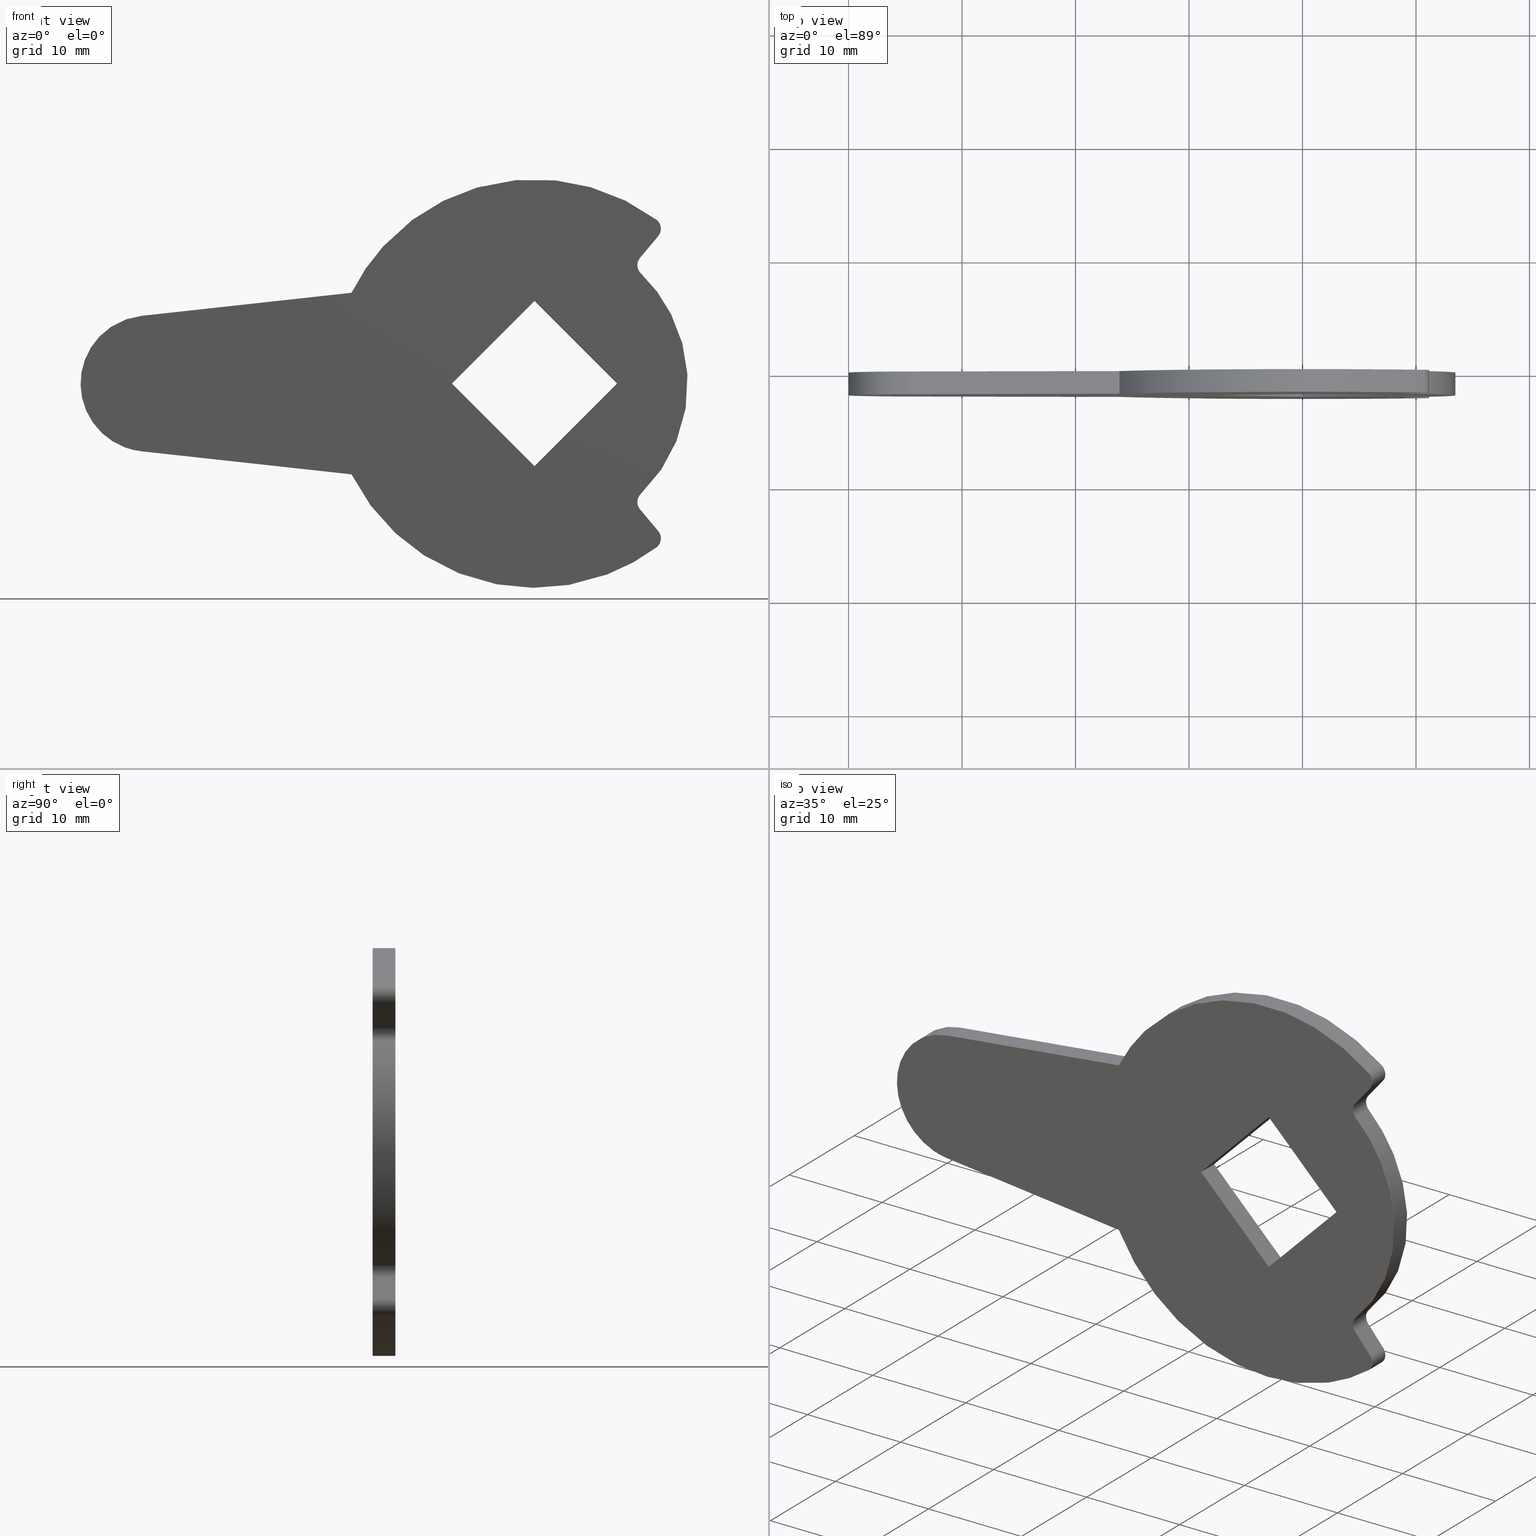
[diagram: canonical four-view strip — front | top / right | iso, engineering-drawing reading convention]
A machine part, canonical four-view strip (front | top / right | iso — engineering-drawing reading convention). The complete STEP part file that produces these views, byte-faithful:
ISO-10303-21;
HEADER;
/****************************************************************
 * Generated by software with PDE/Lib inside                    *
 * PDElib Version 4.4.1-0003, patched  Thursday August 19 11:58 *
 * International Technegroup Inc. (www.iti-oh.com)              *
 ****************************************************************/
FILE_DESCRIPTION((''),'2;1');
FILE_NAME('','2005-10-12T14:39:04',(''),(''),'','CADfix','');
FILE_SCHEMA(('AUTOMOTIVE_DESIGN'));
ENDSEC;
DATA;
#5=APPLICATION_CONTEXT('automotive design');
#6=APPLICATION_PROTOCOL_DEFINITION('Draft International Standard','automotive_design',1998,#5);
#7=PRODUCT_CONTEXT('None',#5,'mechanical');
#8=PRODUCT('cam','','None',(#7));
#9=PRODUCT_RELATED_PRODUCT_CATEGORY('part','description',(#8));
#10=PRODUCT_DEFINITION_FORMATION('None','None',#8);
#11=PRODUCT_DEFINITION_CONTEXT('part definition',#5,'design');
#12=PRODUCT_DEFINITION('None','None',#10,#11);
#18=(NAMED_UNIT(*)PLANE_ANGLE_UNIT()SI_UNIT($,.RADIAN.));
#19=DIMENSIONAL_EXPONENTS(0.0,0.0,0.0,0.0,0.0,0.0,0.0);
#20=PLANE_ANGLE_MEASURE_WITH_UNIT(PLANE_ANGLE_MEASURE(0.017453292500000),#18);
#24=(CONVERSION_BASED_UNIT('DEGREE',#20)NAMED_UNIT(#19)PLANE_ANGLE_UNIT());
#28=(NAMED_UNIT(*)SI_UNIT($,.STERADIAN.)SOLID_ANGLE_UNIT());
#32=(LENGTH_UNIT()NAMED_UNIT(*)SI_UNIT(.MILLI.,.METRE.));
#34=UNCERTAINTY_MEASURE_WITH_UNIT(LENGTH_MEASURE(0.001000000000000),#32,'DISTANCE_ACCURACY_VALUE','');
#36=(GEOMETRIC_REPRESENTATION_CONTEXT(3)GLOBAL_UNCERTAINTY_ASSIGNED_CONTEXT((#34))GLOBAL_UNIT_ASSIGNED_CONTEXT((#24,#28,#32))REPRESENTATION_CONTEXT('None','None'));
#37=AXIS2_PLACEMENT_3D('',#38,#39,#40);
#38=CARTESIAN_POINT('',(0.0,0.0,0.0));
#39=DIRECTION('',(0.0,0.0,1.0));
#40=DIRECTION('',(1.0,0.0,0.0));
#41=ADVANCED_BREP_SHAPE_REPRESENTATION('',(#37,#773),#36);
#42=PRODUCT_DEFINITION_SHAPE('','',#12);
#43=SHAPE_DEFINITION_REPRESENTATION(#42,#41);
#44=CARTESIAN_POINT('',(-42.672072522692837,0.0,19.798160958607792));
#45=CARTESIAN_POINT('',(16.172307132952142,0.0,19.798160958607792));
#46=CARTESIAN_POINT('',(-42.672072522692837,0.0,-19.798180533607209));
#47=CARTESIAN_POINT('',(16.172307132952142,0.0,-19.798180533607209));
#48=B_SPLINE_SURFACE_WITH_KNOTS('',1,1,((#44,#46),(#45,#47)),.UNSPECIFIED.,.F.,.F.,.U.,(2,2),(2,2),(0.0,58.844379655644993),(0.0,39.596341492214997),.UNSPECIFIED.);
#49=CARTESIAN_POINT('',(-16.124516390019249,0.0,-7.999998199249859));
#50=VERTEX_POINT('',#49);
#51=CARTESIAN_POINT('',(-34.676984152787249,0.0,-5.961662655938681));
#52=VERTEX_POINT('',#51);
#53=CARTESIAN_POINT('',(-16.124516390019249,0.0,-7.999998199249859));
#54=CARTESIAN_POINT('',(-34.676984152787249,0.0,-5.961662655938681));
#55=QUASI_UNIFORM_CURVE('',1,(#53,#54),.UNSPECIFIED.,.F.,.U.);
#56=EDGE_CURVE('',#50,#52,#55,.T.);
#57=ORIENTED_EDGE('',*,*,#56,.T.);
#58=CARTESIAN_POINT('',(-34.633145301686049,0.0,5.966479173585730));
#59=VERTEX_POINT('',#58);
#60=CARTESIAN_POINT('',(-34.633145301686049,0.0,5.966479173585726));
#61=CARTESIAN_POINT('',(-39.979998210725512,0.0,5.398907567245670));
#62=CARTESIAN_POINT('',(-39.999759478119252,0.0,0.022051324836150));
#63=CARTESIAN_POINT('',(-40.019520745512963,0.0,-5.354804917573370));
#64=CARTESIAN_POINT('',(-34.676984152787249,0.0,-5.961662655938678));
#72=(BOUNDED_CURVE()B_SPLINE_CURVE(2,(#60,#61,#62,#63,#64),.UNSPECIFIED.,.F.,.U.)B_SPLINE_CURVE_WITH_KNOTS((3,2,3),(0.0,0.500000000000000,1.0),.UNSPECIFIED.)CURVE()GEOMETRIC_REPRESENTATION_ITEM()RATIONAL_B_SPLINE_CURVE((1.0,0.744718579548289,1.0,0.744718579548289,1.0))REPRESENTATION_ITEM(''));
#73=EDGE_CURVE('',#59,#52,#72,.T.);
#74=ORIENTED_EDGE('',*,*,#73,.F.);
#75=CARTESIAN_POINT('',(-16.124516390019298,0.0,7.999998199249760));
#76=VERTEX_POINT('',#75);
#77=CARTESIAN_POINT('',(-34.633145301686049,0.0,5.966479173585730));
#78=CARTESIAN_POINT('',(-16.124516390019298,0.0,7.999998199249760));
#79=QUASI_UNIFORM_CURVE('',1,(#77,#78),.UNSPECIFIED.,.F.,.U.);
#80=EDGE_CURVE('',#59,#76,#79,.T.);
#81=ORIENTED_EDGE('',*,*,#80,.T.);
#82=CARTESIAN_POINT('',(10.739072857427660,0.0,14.445526761286960));
#83=VERTEX_POINT('',#82);
#84=CARTESIAN_POINT('',(10.739072857427670,0.0,14.445526761286979));
#85=CARTESIAN_POINT('',(3.984586888391954,0.0,19.466919151968000));
#86=CARTESIAN_POINT('',(-4.199630048120304,0.0,17.503235016676509));
#87=CARTESIAN_POINT('',(-12.383846984632562,0.0,15.539550881385031));
#88=CARTESIAN_POINT('',(-16.124516390019298,0.0,7.999998199249757));
#96=(BOUNDED_CURVE()B_SPLINE_CURVE(2,(#84,#85,#86,#87,#88),.UNSPECIFIED.,.F.,.U.)B_SPLINE_CURVE_WITH_KNOTS((3,2,3),(0.0,0.500000000000000,1.0),.UNSPECIFIED.)CURVE()GEOMETRIC_REPRESENTATION_ITEM()RATIONAL_B_SPLINE_CURVE((1.0,0.905864952288434,1.0,0.905864952288434,1.0))REPRESENTATION_ITEM(''));
#97=EDGE_CURVE('',#83,#76,#96,.T.);
#98=ORIENTED_EDGE('',*,*,#97,.F.);
#99=CARTESIAN_POINT('',(10.903888410520860,0.0,12.994704011793500));
#100=VERTEX_POINT('',#99);
#101=CARTESIAN_POINT('',(10.903888410520850,0.0,12.994704011793511));
#102=CARTESIAN_POINT('',(11.185033449866765,0.0,13.324930315184833));
#103=CARTESIAN_POINT('',(11.136079863434230,0.0,13.755854311935661));
#104=CARTESIAN_POINT('',(11.087126277001692,0.0,14.186778308686488));
#105=CARTESIAN_POINT('',(10.739072857427660,0.0,14.445526761286960));
#113=(BOUNDED_CURVE()B_SPLINE_CURVE(2,(#101,#102,#103,#104,#105),.UNSPECIFIED.,.F.,.U.)B_SPLINE_CURVE_WITH_KNOTS((3,2,3),(0.0,0.500000000000000,1.0),.UNSPECIFIED.)CURVE()GEOMETRIC_REPRESENTATION_ITEM()RATIONAL_B_SPLINE_CURVE((1.0,0.917438250666661,1.0,0.917438250666661,1.0))REPRESENTATION_ITEM(''));
#114=EDGE_CURVE('',#100,#83,#113,.T.);
#115=ORIENTED_EDGE('',*,*,#114,.F.);
#116=CARTESIAN_POINT('',(9.302911589467289,0.0,11.086695988192600));
#117=VERTEX_POINT('',#116);
#118=CARTESIAN_POINT('',(10.903888410520860,0.0,12.994704011793500));
#119=CARTESIAN_POINT('',(9.302911589467289,0.0,11.086695988192600));
#120=QUASI_UNIFORM_CURVE('',1,(#118,#119),.UNSPECIFIED.,.F.,.U.);
#121=EDGE_CURVE('',#100,#117,#120,.T.);
#122=ORIENTED_EDGE('',*,*,#121,.T.);
#123=CARTESIAN_POINT('',(9.370201414441402,0.0,9.718512161382490));
#124=VERTEX_POINT('',#123);
#125=CARTESIAN_POINT('',(9.302911589467280,0.0,11.086695988192609));
#126=CARTESIAN_POINT('',(8.693486324251857,0.0,10.370976687549268));
#127=CARTESIAN_POINT('',(9.370201414441397,0.0,9.718512161382483));
#135=(BOUNDED_CURVE()B_SPLINE_CURVE(2,(#125,#126,#127),.UNSPECIFIED.,.F.,.U.)CURVE()GEOMETRIC_REPRESENTATION_ITEM()QUASI_UNIFORM_CURVE()RATIONAL_B_SPLINE_CURVE((1.0,0.728615029615800,1.0))REPRESENTATION_ITEM(''));
#136=EDGE_CURVE('',#117,#124,#135,.T.);
#137=ORIENTED_EDGE('',*,*,#136,.T.);
#138=CARTESIAN_POINT('',(9.370232998812860,0.0,-9.718481708830780));
#139=VERTEX_POINT('',#138);
#140=CARTESIAN_POINT('',(9.370232998812858,0.0,-9.718481708830781));
#141=CARTESIAN_POINT('',(13.500002456544811,0.0,-5.736679563118574));
#142=CARTESIAN_POINT('',(13.499993134626131,0.0,0.000021937005616));
#143=CARTESIAN_POINT('',(13.499983812707452,0.0,5.736723437129803));
#144=CARTESIAN_POINT('',(9.370201414441402,0.0,9.718512161382490));
#152=(BOUNDED_CURVE()B_SPLINE_CURVE(2,(#140,#141,#142,#143,#144),.UNSPECIFIED.,.F.,.U.)B_SPLINE_CURVE_WITH_KNOTS((3,2,3),(0.0,0.500000000000000,1.0),.UNSPECIFIED.)CURVE()GEOMETRIC_REPRESENTATION_ITEM()RATIONAL_B_SPLINE_CURVE((1.0,0.920350869292396,1.0,0.920350869292396,1.0))REPRESENTATION_ITEM(''));
#153=EDGE_CURVE('',#139,#124,#152,.T.);
#154=ORIENTED_EDGE('',*,*,#153,.F.);
#155=CARTESIAN_POINT('',(9.302911589466469,0.0,-11.086695988191639));
#156=VERTEX_POINT('',#155);
#157=CARTESIAN_POINT('',(9.370232998812860,0.0,-9.718481708830780));
#158=CARTESIAN_POINT('',(8.693520258576225,0.0,-10.370948212998021));
#159=CARTESIAN_POINT('',(9.302911589466465,0.0,-11.086695988191639));
#167=(BOUNDED_CURVE()B_SPLINE_CURVE(2,(#157,#158,#159),.UNSPECIFIED.,.F.,.U.)CURVE()GEOMETRIC_REPRESENTATION_ITEM()QUASI_UNIFORM_CURVE()RATIONAL_B_SPLINE_CURVE((1.0,0.728632280253743,1.0))REPRESENTATION_ITEM(''));
#168=EDGE_CURVE('',#139,#156,#167,.T.);
#169=ORIENTED_EDGE('',*,*,#168,.T.);
#170=CARTESIAN_POINT('',(10.903888410526561,0.0,-12.994704011800300));
#171=VERTEX_POINT('',#170);
#172=CARTESIAN_POINT('',(9.302911589466469,0.0,-11.086695988191639));
#173=CARTESIAN_POINT('',(10.903888410526561,0.0,-12.994704011800300));
#174=QUASI_UNIFORM_CURVE('',1,(#172,#173),.UNSPECIFIED.,.F.,.U.);
#175=EDGE_CURVE('',#156,#171,#174,.T.);
#176=ORIENTED_EDGE('',*,*,#175,.T.);
#177=CARTESIAN_POINT('',(10.739112776660720,0.0,-14.445497084531420));
#178=VERTEX_POINT('',#177);
#179=CARTESIAN_POINT('',(10.739112776660731,0.0,-14.445497084531430));
#180=CARTESIAN_POINT('',(11.087159702485563,0.0,-14.186750629943164));
#181=CARTESIAN_POINT('',(11.136101848852570,0.0,-13.755831778363071));
#182=CARTESIAN_POINT('',(11.185043995219578,0.0,-13.324912926782989));
#183=CARTESIAN_POINT('',(10.903888410526561,0.0,-12.994704011800300));
#191=(BOUNDED_CURVE()B_SPLINE_CURVE(2,(#179,#180,#181,#182,#183),.UNSPECIFIED.,.F.,.U.)B_SPLINE_CURVE_WITH_KNOTS((3,2,3),(0.0,0.500000000000000,1.0),.UNSPECIFIED.)CURVE()GEOMETRIC_REPRESENTATION_ITEM()RATIONAL_B_SPLINE_CURVE((1.0,0.917434344494731,1.0,0.917434344494731,1.0))REPRESENTATION_ITEM(''));
#192=EDGE_CURVE('',#178,#171,#191,.T.);
#193=ORIENTED_EDGE('',*,*,#192,.F.);
#194=CARTESIAN_POINT('',(-16.124516390019259,0.0,-7.999998199249873));
#195=CARTESIAN_POINT('',(-12.383854566696820,0.0,-15.539582422374794));
#196=CARTESIAN_POINT('',(-4.199610718877528,0.0,-17.503261055320699));
#197=CARTESIAN_POINT('',(3.984633128941766,0.0,-19.466939688266606));
#198=CARTESIAN_POINT('',(10.739112776660731,0.0,-14.445497084531450));
#206=(BOUNDED_CURVE()B_SPLINE_CURVE(2,(#194,#195,#196,#197,#198),.UNSPECIFIED.,.F.,.U.)B_SPLINE_CURVE_WITH_KNOTS((3,2,3),(0.0,0.500000000000000,1.0),.UNSPECIFIED.)CURVE()GEOMETRIC_REPRESENTATION_ITEM()RATIONAL_B_SPLINE_CURVE((1.0,0.905864136016763,1.0,0.905864136016763,1.0))REPRESENTATION_ITEM(''));
#207=EDGE_CURVE('',#50,#178,#206,.T.);
#208=ORIENTED_EDGE('',*,*,#207,.F.);
#209=EDGE_LOOP('',(#57,#74,#81,#98,#115,#122,#137,#154,#169,#176,#193,#208));
#210=FACE_OUTER_BOUND('',#209,.T.);
#211=CARTESIAN_POINT('',(0.000100000000003,0.0,-7.283200000000000));
#212=VERTEX_POINT('',#211);
#213=CARTESIAN_POINT('',(-7.283100000000000,0.0,0.0));
#214=VERTEX_POINT('',#213);
#215=CARTESIAN_POINT('',(0.000100000000003,0.0,-7.283200000000000));
#216=CARTESIAN_POINT('',(-7.283100000000000,0.0,0.0));
#217=QUASI_UNIFORM_CURVE('',1,(#215,#216),.UNSPECIFIED.,.F.,.U.);
#218=EDGE_CURVE('',#212,#214,#217,.T.);
#219=ORIENTED_EDGE('',*,*,#218,.F.);
#220=CARTESIAN_POINT('',(7.283299999999900,0.0,0.0));
#221=VERTEX_POINT('',#220);
#222=CARTESIAN_POINT('',(7.283299999999900,0.0,0.0));
#223=CARTESIAN_POINT('',(0.000100000000003,0.0,-7.283200000000000));
#224=QUASI_UNIFORM_CURVE('',1,(#222,#223),.UNSPECIFIED.,.F.,.U.);
#225=EDGE_CURVE('',#221,#212,#224,.T.);
#226=ORIENTED_EDGE('',*,*,#225,.F.);
#227=CARTESIAN_POINT('',(0.000100000000003,0.0,7.283200000000000));
#228=VERTEX_POINT('',#227);
#229=CARTESIAN_POINT('',(0.000100000000003,0.0,7.283200000000000));
#230=CARTESIAN_POINT('',(7.283299999999900,0.0,0.0));
#231=QUASI_UNIFORM_CURVE('',1,(#229,#230),.UNSPECIFIED.,.F.,.U.);
#232=EDGE_CURVE('',#228,#221,#231,.T.);
#233=ORIENTED_EDGE('',*,*,#232,.F.);
#234=CARTESIAN_POINT('',(-7.283100000000000,0.0,0.0));
#235=CARTESIAN_POINT('',(0.000100000000003,0.0,7.283200000000000));
#236=QUASI_UNIFORM_CURVE('',1,(#234,#235),.UNSPECIFIED.,.F.,.U.);
#237=EDGE_CURVE('',#214,#228,#236,.T.);
#238=ORIENTED_EDGE('',*,*,#237,.F.);
#239=EDGE_LOOP('',(#219,#226,#233,#238));
#240=FACE_BOUND('',#239,.T.);
#241=ADVANCED_FACE('',(#210,#240),#48,.T.);
#242=CARTESIAN_POINT('',(-42.672072522692837,-1.999999999999915,19.798160958607792));
#243=CARTESIAN_POINT('',(16.172307132952142,-1.999999999999915,19.798160958607792));
#244=CARTESIAN_POINT('',(-42.672072522692837,-1.999999999999915,-19.798180533607209));
#245=CARTESIAN_POINT('',(16.172307132952142,-1.999999999999915,-19.798180533607209));
#246=B_SPLINE_SURFACE_WITH_KNOTS('',1,1,((#242,#244),(#243,#245)),.UNSPECIFIED.,.F.,.F.,.U.,(2,2),(2,2),(0.0,58.844379655644993),(0.0,39.596341492214997),.UNSPECIFIED.);
#247=CARTESIAN_POINT('',(-16.124516390019249,-1.999999999999890,-7.999998199249859));
#248=VERTEX_POINT('',#247);
#249=CARTESIAN_POINT('',(-34.676984152787249,-1.999999999999890,-5.961662655938681));
#250=VERTEX_POINT('',#249);
#251=CARTESIAN_POINT('',(-16.124516390019249,-1.999999999999890,-7.999998199249859));
#252=CARTESIAN_POINT('',(-34.676984152787249,-1.999999999999890,-5.961662655938681));
#253=QUASI_UNIFORM_CURVE('',1,(#251,#252),.UNSPECIFIED.,.F.,.U.);
#254=EDGE_CURVE('',#248,#250,#253,.T.);
#255=ORIENTED_EDGE('',*,*,#254,.F.);
#256=CARTESIAN_POINT('',(10.739112776660720,-1.999999999999890,-14.445497084531420));
#257=VERTEX_POINT('',#256);
#258=CARTESIAN_POINT('',(-16.124516390019259,-1.999999999999890,-7.999998199249873));
#259=CARTESIAN_POINT('',(-12.383854566696820,-1.999999999999890,-15.539582422374794));
#260=CARTESIAN_POINT('',(-4.199610718877528,-1.999999999999890,-17.503261055320699));
#261=CARTESIAN_POINT('',(3.984633128941766,-1.999999999999890,-19.466939688266606));
#262=CARTESIAN_POINT('',(10.739112776660731,-1.999999999999890,-14.445497084531450));
#270=(BOUNDED_CURVE()B_SPLINE_CURVE(2,(#258,#259,#260,#261,#262),.UNSPECIFIED.,.F.,.U.)B_SPLINE_CURVE_WITH_KNOTS((3,2,3),(0.0,0.500000000000000,1.0),.UNSPECIFIED.)CURVE()GEOMETRIC_REPRESENTATION_ITEM()RATIONAL_B_SPLINE_CURVE((1.0,0.905864136016763,1.0,0.905864136016763,1.0))REPRESENTATION_ITEM(''));
#271=EDGE_CURVE('',#248,#257,#270,.T.);
#272=ORIENTED_EDGE('',*,*,#271,.T.);
#273=CARTESIAN_POINT('',(10.903888410526561,-1.999999999999890,-12.994704011800300));
#274=VERTEX_POINT('',#273);
#275=CARTESIAN_POINT('',(10.739112776660731,-1.999999999999890,-14.445497084531430));
#276=CARTESIAN_POINT('',(11.087159702485563,-1.999999999999890,-14.186750629943164));
#277=CARTESIAN_POINT('',(11.136101848852570,-1.999999999999890,-13.755831778363071));
#278=CARTESIAN_POINT('',(11.185043995219578,-1.999999999999890,-13.324912926782989));
#279=CARTESIAN_POINT('',(10.903888410526561,-1.999999999999890,-12.994704011800300));
#287=(BOUNDED_CURVE()B_SPLINE_CURVE(2,(#275,#276,#277,#278,#279),.UNSPECIFIED.,.F.,.U.)B_SPLINE_CURVE_WITH_KNOTS((3,2,3),(0.0,0.500000000000000,1.0),.UNSPECIFIED.)CURVE()GEOMETRIC_REPRESENTATION_ITEM()RATIONAL_B_SPLINE_CURVE((1.0,0.917434344494731,1.0,0.917434344494731,1.0))REPRESENTATION_ITEM(''));
#288=EDGE_CURVE('',#257,#274,#287,.T.);
#289=ORIENTED_EDGE('',*,*,#288,.T.);
#290=CARTESIAN_POINT('',(9.302911589466469,-1.999999999999890,-11.086695988191639));
#291=VERTEX_POINT('',#290);
#292=CARTESIAN_POINT('',(9.302911589466469,-1.999999999999890,-11.086695988191639));
#293=CARTESIAN_POINT('',(10.903888410526561,-1.999999999999890,-12.994704011800300));
#294=QUASI_UNIFORM_CURVE('',1,(#292,#293),.UNSPECIFIED.,.F.,.U.);
#295=EDGE_CURVE('',#291,#274,#294,.T.);
#296=ORIENTED_EDGE('',*,*,#295,.F.);
#297=CARTESIAN_POINT('',(9.370232998812860,-1.999999999999890,-9.718481708830780));
#298=VERTEX_POINT('',#297);
#299=CARTESIAN_POINT('',(9.370232998812860,-1.999999999999890,-9.718481708830780));
#300=CARTESIAN_POINT('',(8.693520258576225,-1.999999999999891,-10.370948212998021));
#301=CARTESIAN_POINT('',(9.302911589466465,-1.999999999999890,-11.086695988191639));
#309=(BOUNDED_CURVE()B_SPLINE_CURVE(2,(#299,#300,#301),.UNSPECIFIED.,.F.,.U.)CURVE()GEOMETRIC_REPRESENTATION_ITEM()QUASI_UNIFORM_CURVE()RATIONAL_B_SPLINE_CURVE((1.0,0.728632280253743,1.0))REPRESENTATION_ITEM(''));
#310=EDGE_CURVE('',#298,#291,#309,.T.);
#311=ORIENTED_EDGE('',*,*,#310,.F.);
#312=CARTESIAN_POINT('',(9.370201414441402,-1.999999999999890,9.718512161382490));
#313=VERTEX_POINT('',#312);
#314=CARTESIAN_POINT('',(9.370232998812858,-1.999999999999890,-9.718481708830781));
#315=CARTESIAN_POINT('',(13.500002456544811,-1.999999999999890,-5.736679563118574));
#316=CARTESIAN_POINT('',(13.499993134626131,-1.999999999999890,0.000021937005616));
#317=CARTESIAN_POINT('',(13.499983812707452,-1.999999999999890,5.736723437129803));
#318=CARTESIAN_POINT('',(9.370201414441402,-1.999999999999890,9.718512161382490));
#326=(BOUNDED_CURVE()B_SPLINE_CURVE(2,(#314,#315,#316,#317,#318),.UNSPECIFIED.,.F.,.U.)B_SPLINE_CURVE_WITH_KNOTS((3,2,3),(0.0,0.500000000000000,1.0),.UNSPECIFIED.)CURVE()GEOMETRIC_REPRESENTATION_ITEM()RATIONAL_B_SPLINE_CURVE((1.0,0.920350869292396,1.0,0.920350869292396,1.0))REPRESENTATION_ITEM(''));
#327=EDGE_CURVE('',#298,#313,#326,.T.);
#328=ORIENTED_EDGE('',*,*,#327,.T.);
#329=CARTESIAN_POINT('',(9.302911589467289,-1.999999999999890,11.086695988192600));
#330=VERTEX_POINT('',#329);
#331=CARTESIAN_POINT('',(9.302911589467280,-1.999999999999890,11.086695988192609));
#332=CARTESIAN_POINT('',(8.693486324251857,-1.999999999999891,10.370976687549268));
#333=CARTESIAN_POINT('',(9.370201414441397,-1.999999999999890,9.718512161382483));
#341=(BOUNDED_CURVE()B_SPLINE_CURVE(2,(#331,#332,#333),.UNSPECIFIED.,.F.,.U.)CURVE()GEOMETRIC_REPRESENTATION_ITEM()QUASI_UNIFORM_CURVE()RATIONAL_B_SPLINE_CURVE((1.0,0.728615029615800,1.0))REPRESENTATION_ITEM(''));
#342=EDGE_CURVE('',#330,#313,#341,.T.);
#343=ORIENTED_EDGE('',*,*,#342,.F.);
#344=CARTESIAN_POINT('',(10.903888410520860,-1.999999999999890,12.994704011793500));
#345=VERTEX_POINT('',#344);
#346=CARTESIAN_POINT('',(10.903888410520860,-1.999999999999890,12.994704011793500));
#347=CARTESIAN_POINT('',(9.302911589467289,-1.999999999999890,11.086695988192600));
#348=QUASI_UNIFORM_CURVE('',1,(#346,#347),.UNSPECIFIED.,.F.,.U.);
#349=EDGE_CURVE('',#345,#330,#348,.T.);
#350=ORIENTED_EDGE('',*,*,#349,.F.);
#351=CARTESIAN_POINT('',(10.739072857427660,-1.999999999999890,14.445526761286960));
#352=VERTEX_POINT('',#351);
#353=CARTESIAN_POINT('',(10.903888410520850,-1.999999999999890,12.994704011793511));
#354=CARTESIAN_POINT('',(11.185033449866765,-1.999999999999889,13.324930315184833));
#355=CARTESIAN_POINT('',(11.136079863434230,-1.999999999999890,13.755854311935661));
#356=CARTESIAN_POINT('',(11.087126277001692,-1.999999999999889,14.186778308686488));
#357=CARTESIAN_POINT('',(10.739072857427660,-1.999999999999890,14.445526761286960));
#365=(BOUNDED_CURVE()B_SPLINE_CURVE(2,(#353,#354,#355,#356,#357),.UNSPECIFIED.,.F.,.U.)B_SPLINE_CURVE_WITH_KNOTS((3,2,3),(0.0,0.500000000000000,1.0),.UNSPECIFIED.)CURVE()GEOMETRIC_REPRESENTATION_ITEM()RATIONAL_B_SPLINE_CURVE((1.0,0.917438250666661,1.0,0.917438250666661,1.0))REPRESENTATION_ITEM(''));
#366=EDGE_CURVE('',#345,#352,#365,.T.);
#367=ORIENTED_EDGE('',*,*,#366,.T.);
#368=CARTESIAN_POINT('',(-16.124516390019298,-1.999999999999890,7.999998199249760));
#369=VERTEX_POINT('',#368);
#370=CARTESIAN_POINT('',(10.739072857427670,-1.999999999999890,14.445526761286979));
#371=CARTESIAN_POINT('',(3.984586888391954,-1.999999999999890,19.466919151968000));
#372=CARTESIAN_POINT('',(-4.199630048120304,-1.999999999999890,17.503235016676509));
#373=CARTESIAN_POINT('',(-12.383846984632562,-1.999999999999890,15.539550881385031));
#374=CARTESIAN_POINT('',(-16.124516390019298,-1.999999999999890,7.999998199249757));
#382=(BOUNDED_CURVE()B_SPLINE_CURVE(2,(#370,#371,#372,#373,#374),.UNSPECIFIED.,.F.,.U.)B_SPLINE_CURVE_WITH_KNOTS((3,2,3),(0.0,0.500000000000000,1.0),.UNSPECIFIED.)CURVE()GEOMETRIC_REPRESENTATION_ITEM()RATIONAL_B_SPLINE_CURVE((1.0,0.905864952288434,1.0,0.905864952288434,1.0))REPRESENTATION_ITEM(''));
#383=EDGE_CURVE('',#352,#369,#382,.T.);
#384=ORIENTED_EDGE('',*,*,#383,.T.);
#385=CARTESIAN_POINT('',(-34.633145301686049,-1.999999999999890,5.966479173585730));
#386=VERTEX_POINT('',#385);
#387=CARTESIAN_POINT('',(-34.633145301686049,-1.999999999999890,5.966479173585730));
#388=CARTESIAN_POINT('',(-16.124516390019298,-1.999999999999890,7.999998199249760));
#389=QUASI_UNIFORM_CURVE('',1,(#387,#388),.UNSPECIFIED.,.F.,.U.);
#390=EDGE_CURVE('',#386,#369,#389,.T.);
#391=ORIENTED_EDGE('',*,*,#390,.F.);
#392=CARTESIAN_POINT('',(-34.633145301686049,-1.999999999999890,5.966479173585726));
#393=CARTESIAN_POINT('',(-39.979998210725512,-1.999999999999891,5.398907567245670));
#394=CARTESIAN_POINT('',(-39.999759478119252,-1.999999999999890,0.022051324836150));
#395=CARTESIAN_POINT('',(-40.019520745512963,-1.999999999999891,-5.354804917573370));
#396=CARTESIAN_POINT('',(-34.676984152787249,-1.999999999999890,-5.961662655938678));
#404=(BOUNDED_CURVE()B_SPLINE_CURVE(2,(#392,#393,#394,#395,#396),.UNSPECIFIED.,.F.,.U.)B_SPLINE_CURVE_WITH_KNOTS((3,2,3),(0.0,0.500000000000000,1.0),.UNSPECIFIED.)CURVE()GEOMETRIC_REPRESENTATION_ITEM()RATIONAL_B_SPLINE_CURVE((1.0,0.744718579548289,1.0,0.744718579548289,1.0))REPRESENTATION_ITEM(''));
#405=EDGE_CURVE('',#386,#250,#404,.T.);
#406=ORIENTED_EDGE('',*,*,#405,.T.);
#407=EDGE_LOOP('',(#255,#272,#289,#296,#311,#328,#343,#350,#367,#384,#391,#406));
#408=FACE_OUTER_BOUND('',#407,.T.);
#409=CARTESIAN_POINT('',(0.000100000000003,-1.999999999999890,-7.283200000000000));
#410=VERTEX_POINT('',#409);
#411=CARTESIAN_POINT('',(-7.283100000000000,-1.999999999999890,0.0));
#412=VERTEX_POINT('',#411);
#413=CARTESIAN_POINT('',(0.000100000000003,-1.999999999999890,-7.283200000000000));
#414=CARTESIAN_POINT('',(-7.283100000000000,-1.999999999999890,0.0));
#415=QUASI_UNIFORM_CURVE('',1,(#413,#414),.UNSPECIFIED.,.F.,.U.);
#416=EDGE_CURVE('',#410,#412,#415,.T.);
#417=ORIENTED_EDGE('',*,*,#416,.T.);
#418=CARTESIAN_POINT('',(0.000100000000003,-1.999999999999890,7.283200000000000));
#419=VERTEX_POINT('',#418);
#420=CARTESIAN_POINT('',(-7.283100000000000,-1.999999999999890,0.0));
#421=CARTESIAN_POINT('',(0.000100000000003,-1.999999999999890,7.283200000000000));
#422=QUASI_UNIFORM_CURVE('',1,(#420,#421),.UNSPECIFIED.,.F.,.U.);
#423=EDGE_CURVE('',#412,#419,#422,.T.);
#424=ORIENTED_EDGE('',*,*,#423,.T.);
#425=CARTESIAN_POINT('',(7.283299999999900,-1.999999999999890,0.0));
#426=VERTEX_POINT('',#425);
#427=CARTESIAN_POINT('',(0.000100000000003,-1.999999999999890,7.283200000000000));
#428=CARTESIAN_POINT('',(7.283299999999900,-1.999999999999890,0.0));
#429=QUASI_UNIFORM_CURVE('',1,(#427,#428),.UNSPECIFIED.,.F.,.U.);
#430=EDGE_CURVE('',#419,#426,#429,.T.);
#431=ORIENTED_EDGE('',*,*,#430,.T.);
#432=CARTESIAN_POINT('',(7.283299999999900,-1.999999999999890,0.0));
#433=CARTESIAN_POINT('',(0.000100000000003,-1.999999999999890,-7.283200000000000));
#434=QUASI_UNIFORM_CURVE('',1,(#432,#433),.UNSPECIFIED.,.F.,.U.);
#435=EDGE_CURVE('',#426,#410,#434,.T.);
#436=ORIENTED_EDGE('',*,*,#435,.T.);
#437=EDGE_LOOP('',(#417,#424,#431,#436));
#438=FACE_BOUND('',#437,.T.);
#439=ADVANCED_FACE('',(#408,#438),#246,.F.);
#440=CARTESIAN_POINT('',(-16.193714380140339,-2.049999999999888,-7.858982342895257));
#441=CARTESIAN_POINT('',(-16.193714380140339,0.051249999999997,-7.858982342895257));
#442=CARTESIAN_POINT('',(-6.134720521322857,-2.049999999999887,-28.586002939442739));
#443=CARTESIAN_POINT('',(-6.134720521322857,0.051249999999997,-28.586002939442739));
#444=CARTESIAN_POINT('',(11.543128119791181,-2.049999999999888,-13.811484074745520));
#445=CARTESIAN_POINT('',(11.543128119791181,0.051249999999997,-13.811484074745520));
#453=(BOUNDED_SURFACE()B_SPLINE_SURFACE(1,2,((#440,#442,#444),(#441,#443,#445)),.UNSPECIFIED.,.F.,.F.,.U.)B_SPLINE_SURFACE_WITH_KNOTS((2,2),(3,3),(0.0,2.101249999999885),(0.0,35.116731548899430),.UNSPECIFIED.)GEOMETRIC_REPRESENTATION_ITEM()RATIONAL_B_SPLINE_SURFACE(((1.0,0.615661475325658,1.0),(1.0,0.615661475325658,1.0)))REPRESENTATION_ITEM('')SURFACE());
#454=ORIENTED_EDGE('',*,*,#207,.T.);
#455=CARTESIAN_POINT('',(10.739112776660720,-1.999999999999890,-14.445497084531420));
#456=CARTESIAN_POINT('',(10.739112776660720,0.0,-14.445497084531420));
#457=QUASI_UNIFORM_CURVE('',1,(#455,#456),.UNSPECIFIED.,.F.,.U.);
#458=EDGE_CURVE('',#257,#178,#457,.T.);
#459=ORIENTED_EDGE('',*,*,#458,.F.);
#460=ORIENTED_EDGE('',*,*,#271,.F.);
#461=CARTESIAN_POINT('',(-16.124516390019249,-1.999999999999890,-7.999998199249859));
#462=CARTESIAN_POINT('',(-16.124516390019249,0.0,-7.999998199249859));
#463=QUASI_UNIFORM_CURVE('',1,(#461,#462),.UNSPECIFIED.,.F.,.U.);
#464=EDGE_CURVE('',#248,#50,#463,.T.);
#465=ORIENTED_EDGE('',*,*,#464,.T.);
#466=EDGE_LOOP('',(#454,#459,#460,#465));
#467=FACE_OUTER_BOUND('',#466,.T.);
#468=ADVANCED_FACE('',(#467),#453,.T.);
#469=CARTESIAN_POINT('',(-7.646895868232511,-2.099899996123496,-0.363795868232511));
#470=CARTESIAN_POINT('',(0.363895477531212,-2.099899996123496,7.646995477531224));
#471=CARTESIAN_POINT('',(-7.646895868232511,0.099900049767787,-0.363795868232511));
#472=CARTESIAN_POINT('',(0.363895477531212,0.099900049767787,7.646995477531224));
#473=B_SPLINE_SURFACE_WITH_KNOTS('',1,1,((#469,#471),(#470,#472)),.UNSPECIFIED.,.F.,.F.,.U.,(2,2),(2,2),(0.0,11.328969766520080),(0.0,2.199800045891283),.UNSPECIFIED.);
#474=ORIENTED_EDGE('',*,*,#237,.T.);
#475=CARTESIAN_POINT('',(0.000100000000003,-1.999999999999890,7.283200000000000));
#476=CARTESIAN_POINT('',(0.000100000000003,0.0,7.283200000000000));
#477=QUASI_UNIFORM_CURVE('',1,(#475,#476),.UNSPECIFIED.,.F.,.U.);
#478=EDGE_CURVE('',#419,#228,#477,.T.);
#479=ORIENTED_EDGE('',*,*,#478,.F.);
#480=ORIENTED_EDGE('',*,*,#423,.F.);
#481=CARTESIAN_POINT('',(-7.283100000000000,-1.999999999999890,0.0));
#482=CARTESIAN_POINT('',(-7.283100000000000,0.0,0.0));
#483=QUASI_UNIFORM_CURVE('',1,(#481,#482),.UNSPECIFIED.,.F.,.U.);
#484=EDGE_CURVE('',#412,#214,#483,.T.);
#485=ORIENTED_EDGE('',*,*,#484,.T.);
#486=EDGE_LOOP('',(#474,#479,#480,#485));
#487=FACE_OUTER_BOUND('',#486,.T.);
#488=ADVANCED_FACE('',(#487),#473,.F.);
#489=CARTESIAN_POINT('',(-0.363695757514267,-2.099899996123496,7.646995757514275));
#490=CARTESIAN_POINT('',(7.647096017981699,-2.099899996123496,-0.363796017981804));
#491=CARTESIAN_POINT('',(-0.363695757514267,0.099900049767787,7.646995757514275));
#492=CARTESIAN_POINT('',(7.647096017981699,0.099900049767787,-0.363796017981804));
#493=B_SPLINE_SURFACE_WITH_KNOTS('',1,1,((#489,#491),(#490,#492)),.UNSPECIFIED.,.F.,.F.,.U.,(2,2),(2,2),(0.0,11.328970374253320),(0.0,2.199800045891283),.UNSPECIFIED.);
#494=ORIENTED_EDGE('',*,*,#232,.T.);
#495=CARTESIAN_POINT('',(7.283299999999900,-1.999999999999890,0.0));
#496=CARTESIAN_POINT('',(7.283299999999900,0.0,0.0));
#497=QUASI_UNIFORM_CURVE('',1,(#495,#496),.UNSPECIFIED.,.F.,.U.);
#498=EDGE_CURVE('',#426,#221,#497,.T.);
#499=ORIENTED_EDGE('',*,*,#498,.F.);
#500=ORIENTED_EDGE('',*,*,#430,.F.);
#501=ORIENTED_EDGE('',*,*,#478,.T.);
#502=EDGE_LOOP('',(#494,#499,#500,#501));
#503=FACE_OUTER_BOUND('',#502,.T.);
#504=ADVANCED_FACE('',(#503),#493,.F.);
#505=CARTESIAN_POINT('',(7.647095799862935,-2.099899996123496,0.363795799863039));
#506=CARTESIAN_POINT('',(-0.363695474278624,-2.099899996123496,-7.646995474278624));
#507=CARTESIAN_POINT('',(7.647095799862935,0.099900049767787,0.363795799863039));
#508=CARTESIAN_POINT('',(-0.363695474278624,0.099900049767787,-7.646995474278624));
#509=B_SPLINE_SURFACE_WITH_KNOTS('',1,1,((#505,#507),(#506,#508)),.UNSPECIFIED.,.F.,.F.,.U.,(2,2),(2,2),(0.0,11.328969665231110),(0.0,2.199800045891283),.UNSPECIFIED.);
#510=ORIENTED_EDGE('',*,*,#225,.T.);
#511=CARTESIAN_POINT('',(0.000100000000003,-1.999999999999890,-7.283200000000000));
#512=CARTESIAN_POINT('',(0.000100000000003,0.0,-7.283200000000000));
#513=QUASI_UNIFORM_CURVE('',1,(#511,#512),.UNSPECIFIED.,.F.,.U.);
#514=EDGE_CURVE('',#410,#212,#513,.T.);
#515=ORIENTED_EDGE('',*,*,#514,.F.);
#516=ORIENTED_EDGE('',*,*,#435,.F.);
#517=ORIENTED_EDGE('',*,*,#498,.T.);
#518=EDGE_LOOP('',(#510,#515,#516,#517));
#519=FACE_OUTER_BOUND('',#518,.T.);
#520=ADVANCED_FACE('',(#519),#509,.F.);
#521=CARTESIAN_POINT('',(0.363895757514278,-2.099899996123496,-7.646995757514275));
#522=CARTESIAN_POINT('',(-7.646896017981803,-2.099899996123496,0.363796017981805));
#523=CARTESIAN_POINT('',(0.363895757514278,0.099900049767787,-7.646995757514275));
#524=CARTESIAN_POINT('',(-7.646896017981803,0.099900049767787,0.363796017981805));
#525=B_SPLINE_SURFACE_WITH_KNOTS('',1,1,((#521,#523),(#522,#524)),.UNSPECIFIED.,.F.,.F.,.U.,(2,2),(2,2),(0.0,11.328970374253400),(0.0,2.199800045891283),.UNSPECIFIED.);
#526=ORIENTED_EDGE('',*,*,#218,.T.);
#527=ORIENTED_EDGE('',*,*,#484,.F.);
#528=ORIENTED_EDGE('',*,*,#416,.F.);
#529=ORIENTED_EDGE('',*,*,#514,.T.);
#530=EDGE_LOOP('',(#526,#527,#528,#529));
#531=FACE_OUTER_BOUND('',#530,.T.);
#532=ADVANCED_FACE('',(#531),#525,.F.);
#533=CARTESIAN_POINT('',(10.714822981208620,-2.049999999999888,-14.462996321668021));
#534=CARTESIAN_POINT('',(10.714822981208620,0.051249999999997,-14.462996321668021));
#535=CARTESIAN_POINT('',(11.686157251042212,-2.049999999999888,-13.785065188189854));
#536=CARTESIAN_POINT('',(11.686157251042212,0.051249999999997,-13.785065188189854));
#537=CARTESIAN_POINT('',(10.854892126000992,-2.049999999999888,-12.941217348006351));
#538=CARTESIAN_POINT('',(10.854892126000992,0.051249999999997,-12.941217348006351));
#546=(BOUNDED_SURFACE()B_SPLINE_SURFACE(1,2,((#533,#535,#537),(#534,#536,#538)),.UNSPECIFIED.,.F.,.F.,.U.)B_SPLINE_SURFACE_WITH_KNOTS((2,2),(3,3),(0.0,2.101249999999885),(0.0,0.996097739007045),.UNSPECIFIED.)GEOMETRIC_REPRESENTATION_ITEM()RATIONAL_B_SPLINE_SURFACE(((1.0,0.644181545663460,0.997223007050138),(1.0,0.644181545663460,0.997223007050138)))REPRESENTATION_ITEM('')SURFACE());
#547=ORIENTED_EDGE('',*,*,#192,.T.);
#548=CARTESIAN_POINT('',(10.903888410526561,-1.999999999999890,-12.994704011800300));
#549=CARTESIAN_POINT('',(10.903888410526561,0.0,-12.994704011800300));
#550=QUASI_UNIFORM_CURVE('',1,(#548,#549),.UNSPECIFIED.,.F.,.U.);
#551=EDGE_CURVE('',#274,#171,#550,.T.);
#552=ORIENTED_EDGE('',*,*,#551,.F.);
#553=ORIENTED_EDGE('',*,*,#288,.F.);
#554=ORIENTED_EDGE('',*,*,#458,.T.);
#555=EDGE_LOOP('',(#547,#552,#553,#554));
#556=FACE_OUTER_BOUND('',#555,.T.);
#557=ADVANCED_FACE('',(#556),#546,.T.);
#558=CARTESIAN_POINT('',(9.222942698744948,-2.099899996123497,-10.991390870010900));
#559=CARTESIAN_POINT('',(10.983857487328130,-2.099899996123497,-13.090009351747000));
#560=CARTESIAN_POINT('',(9.222942698744948,0.099900049767787,-10.991390870010900));
#561=CARTESIAN_POINT('',(10.983857487328130,0.099900049767787,-13.090009351747000));
#562=B_SPLINE_SURFACE_WITH_KNOTS('',1,1,((#558,#560),(#559,#561)),.UNSPECIFIED.,.F.,.F.,.U.,(2,2),(2,2),(0.0,2.739529234108534),(0.0,2.199800045891283),.UNSPECIFIED.);
#563=ORIENTED_EDGE('',*,*,#175,.F.);
#564=CARTESIAN_POINT('',(9.302911589466469,-1.999999999999890,-11.086695988191639));
#565=CARTESIAN_POINT('',(9.302911589466469,0.0,-11.086695988191639));
#566=QUASI_UNIFORM_CURVE('',1,(#564,#565),.UNSPECIFIED.,.F.,.U.);
#567=EDGE_CURVE('',#291,#156,#566,.T.);
#568=ORIENTED_EDGE('',*,*,#567,.F.);
#569=ORIENTED_EDGE('',*,*,#295,.T.);
#570=ORIENTED_EDGE('',*,*,#551,.T.);
#571=EDGE_LOOP('',(#563,#568,#569,#570));
#572=FACE_OUTER_BOUND('',#571,.T.);
#573=ADVANCED_FACE('',(#572),#562,.T.);
#574=CARTESIAN_POINT('',(9.376541809113041,-2.049999999999888,-9.712451834966251));
#575=CARTESIAN_POINT('',(9.376541809113041,0.051249999999997,-9.712451834966251));
#576=CARTESIAN_POINT('',(8.650595052157073,-2.049999999999888,-10.400265691601151));
#577=CARTESIAN_POINT('',(8.650595052157073,0.051249999999997,-10.400265691601151));
#578=CARTESIAN_POINT('',(9.338408908791973,-2.049999999999888,-11.126212448557119));
#579=CARTESIAN_POINT('',(9.338408908791973,0.051249999999997,-11.126212448557119));
#587=(BOUNDED_SURFACE()B_SPLINE_SURFACE(1,2,((#574,#576,#578),(#575,#577,#579)),.UNSPECIFIED.,.F.,.F.,.U.)B_SPLINE_SURFACE_WITH_KNOTS((2,2),(3,3),(0.0,2.101249999999885),(0.0,1.0),.UNSPECIFIED.)GEOMETRIC_REPRESENTATION_ITEM()RATIONAL_B_SPLINE_SURFACE(((1.0,0.707106781186548,1.0),(1.0,0.707106781186548,1.0)))REPRESENTATION_ITEM('')SURFACE());
#588=ORIENTED_EDGE('',*,*,#168,.F.);
#589=CARTESIAN_POINT('',(9.370232998812860,-1.999999999999890,-9.718481708830780));
#590=CARTESIAN_POINT('',(9.370232998812860,0.0,-9.718481708830780));
#591=QUASI_UNIFORM_CURVE('',1,(#589,#590),.UNSPECIFIED.,.F.,.U.);
#592=EDGE_CURVE('',#298,#139,#591,.T.);
#593=ORIENTED_EDGE('',*,*,#592,.F.);
#594=ORIENTED_EDGE('',*,*,#310,.T.);
#595=ORIENTED_EDGE('',*,*,#567,.T.);
#596=EDGE_LOOP('',(#588,#593,#594,#595));
#597=FACE_OUTER_BOUND('',#596,.T.);
#598=ADVANCED_FACE('',(#597),#587,.F.);
#599=CARTESIAN_POINT('',(8.953331498205836,-2.049999999999888,-10.103862748279241));
#600=CARTESIAN_POINT('',(8.953331498205836,0.051249999999997,-10.103862748279241));
#601=CARTESIAN_POINT('',(20.697967435573993,-2.049999999999888,0.303454025686780));
#602=CARTESIAN_POINT('',(20.697967435573993,0.051249999999997,0.303454025686780));
#603=CARTESIAN_POINT('',(8.653281040263730,-2.049999999999887,10.361994942421267));
#604=CARTESIAN_POINT('',(8.653281040263730,0.051249999999997,10.361994942421267));
#612=(BOUNDED_SURFACE()B_SPLINE_SURFACE(1,2,((#599,#601,#603),(#600,#602,#604)),.UNSPECIFIED.,.F.,.F.,.U.)B_SPLINE_SURFACE_WITH_KNOTS((2,2),(3,3),(0.0,2.101249999999885),(0.0,24.777186746523800),.UNSPECIFIED.)GEOMETRIC_REPRESENTATION_ITEM()RATIONAL_B_SPLINE_SURFACE(((1.0,0.651097007603405,0.996717594513301),(1.0,0.651097007603405,0.996717594513301)))REPRESENTATION_ITEM('')SURFACE());
#613=ORIENTED_EDGE('',*,*,#153,.T.);
#614=CARTESIAN_POINT('',(9.370201414441402,-1.999999999999890,9.718512161382490));
#615=CARTESIAN_POINT('',(9.370201414441402,0.0,9.718512161382490));
#616=QUASI_UNIFORM_CURVE('',1,(#614,#615),.UNSPECIFIED.,.F.,.U.);
#617=EDGE_CURVE('',#313,#124,#616,.T.);
#618=ORIENTED_EDGE('',*,*,#617,.F.);
#619=ORIENTED_EDGE('',*,*,#327,.F.);
#620=ORIENTED_EDGE('',*,*,#592,.T.);
#621=EDGE_LOOP('',(#613,#618,#619,#620));
#622=FACE_OUTER_BOUND('',#621,.T.);
#623=ADVANCED_FACE('',(#622),#612,.T.);
#624=CARTESIAN_POINT('',(9.331914732813408,-2.049999999999888,11.119289676112750));
#625=CARTESIAN_POINT('',(9.331914732813408,0.051249999999997,11.119289676112750));
#626=CARTESIAN_POINT('',(8.626827874075849,-2.049999999999888,10.360896048357196));
#627=CARTESIAN_POINT('',(8.626827874075849,0.051249999999997,10.360896048357196));
#628=CARTESIAN_POINT('',(9.409366685425969,-2.049999999999888,9.682706265394220));
#629=CARTESIAN_POINT('',(9.409366685425969,0.051249999999997,9.682706265394220));
#637=(BOUNDED_SURFACE()B_SPLINE_SURFACE(1,2,((#624,#626,#628),(#625,#627,#629)),.UNSPECIFIED.,.F.,.F.,.U.)B_SPLINE_SURFACE_WITH_KNOTS((2,2),(3,3),(0.0,2.101249999999885),(0.0,1.0),.UNSPECIFIED.)GEOMETRIC_REPRESENTATION_ITEM()RATIONAL_B_SPLINE_SURFACE(((1.0,0.694658370458997,1.0),(1.0,0.694658370458997,1.0)))REPRESENTATION_ITEM('')SURFACE());
#638=ORIENTED_EDGE('',*,*,#136,.F.);
#639=CARTESIAN_POINT('',(9.302911589467289,-1.999999999999890,11.086695988192600));
#640=CARTESIAN_POINT('',(9.302911589467289,0.0,11.086695988192600));
#641=QUASI_UNIFORM_CURVE('',1,(#639,#640),.UNSPECIFIED.,.F.,.U.);
#642=EDGE_CURVE('',#330,#117,#641,.T.);
#643=ORIENTED_EDGE('',*,*,#642,.F.);
#644=ORIENTED_EDGE('',*,*,#342,.T.);
#645=ORIENTED_EDGE('',*,*,#617,.T.);
#646=EDGE_LOOP('',(#638,#643,#644,#645));
#647=FACE_OUTER_BOUND('',#646,.T.);
#648=ADVANCED_FACE('',(#647),#637,.F.);
#649=CARTESIAN_POINT('',(10.983857455119511,-2.099899996123497,13.090009313361520));
#650=CARTESIAN_POINT('',(9.222942745262515,-2.099899996123497,10.991390925449480));
#651=CARTESIAN_POINT('',(10.983857455119511,0.099900049767787,13.090009313361520));
#652=CARTESIAN_POINT('',(9.222942745262515,0.099900049767787,10.991390925449480));
#653=B_SPLINE_SURFACE_WITH_KNOTS('',1,1,((#649,#651),(#650,#652)),.UNSPECIFIED.,.F.,.F.,.U.,(2,2),(2,2),(0.0,2.739529111630909),(0.0,2.199800045891283),.UNSPECIFIED.);
#654=ORIENTED_EDGE('',*,*,#121,.F.);
#655=CARTESIAN_POINT('',(10.903888410520860,-1.999999999999890,12.994704011793500));
#656=CARTESIAN_POINT('',(10.903888410520860,0.0,12.994704011793500));
#657=QUASI_UNIFORM_CURVE('',1,(#655,#656),.UNSPECIFIED.,.F.,.U.);
#658=EDGE_CURVE('',#345,#100,#657,.T.);
#659=ORIENTED_EDGE('',*,*,#658,.F.);
#660=ORIENTED_EDGE('',*,*,#349,.T.);
#661=ORIENTED_EDGE('',*,*,#642,.T.);
#662=EDGE_LOOP('',(#654,#659,#660,#661));
#663=FACE_OUTER_BOUND('',#662,.T.);
#664=ADVANCED_FACE('',(#663),#653,.T.);
#665=CARTESIAN_POINT('',(10.884115499886690,-2.049999999999888,12.972172327387980));
#666=CARTESIAN_POINT('',(10.884115499886690,0.051249999999997,12.972172327387980));
#667=CARTESIAN_POINT('',(11.678704196290749,-2.049999999999888,13.850706852033158));
#668=CARTESIAN_POINT('',(11.678704196290749,0.051249999999997,13.850706852033158));
#669=CARTESIAN_POINT('',(10.679328024175499,-2.049999999999888,14.486663905657778));
#670=CARTESIAN_POINT('',(10.679328024175499,0.051249999999997,14.486663905657778));
#678=(BOUNDED_SURFACE()B_SPLINE_SURFACE(1,2,((#665,#667,#669),(#666,#668,#670)),.UNSPECIFIED.,.F.,.F.,.U.)B_SPLINE_SURFACE_WITH_KNOTS((2,2),(3,3),(0.0,2.101249999999885),(0.0,0.996096896117646),.UNSPECIFIED.)GEOMETRIC_REPRESENTATION_ITEM()RATIONAL_B_SPLINE_SURFACE(((1.0,0.644181846753997,0.997222409569307),(1.0,0.644181846753997,0.997222409569307)))REPRESENTATION_ITEM('')SURFACE());
#679=ORIENTED_EDGE('',*,*,#114,.T.);
#680=CARTESIAN_POINT('',(10.739072857427660,-1.999999999999890,14.445526761286960));
#681=CARTESIAN_POINT('',(10.739072857427660,0.0,14.445526761286960));
#682=QUASI_UNIFORM_CURVE('',1,(#680,#681),.UNSPECIFIED.,.F.,.U.);
#683=EDGE_CURVE('',#352,#83,#682,.T.);
#684=ORIENTED_EDGE('',*,*,#683,.F.);
#685=ORIENTED_EDGE('',*,*,#366,.F.);
#686=ORIENTED_EDGE('',*,*,#658,.T.);
#687=EDGE_LOOP('',(#679,#684,#685,#686));
#688=FACE_OUTER_BOUND('',#687,.T.);
#689=ADVANCED_FACE('',(#688),#678,.T.);
#690=CARTESIAN_POINT('',(11.300398543710660,-2.049999999999888,14.010780340803541));
#691=CARTESIAN_POINT('',(11.300398543710660,0.051249999999997,14.010780340803541));
#692=CARTESIAN_POINT('',(-7.583697467031023,-2.049999999999888,29.241699454702960));
#693=CARTESIAN_POINT('',(-7.583697467031023,0.051249999999997,29.241699454702960));
#694=CARTESIAN_POINT('',(-16.685314106339916,-2.049999999999888,6.752800999062409));
#695=CARTESIAN_POINT('',(-16.685314106339916,0.051249999999997,6.752800999062409));
#703=(BOUNDED_SURFACE()B_SPLINE_SURFACE(1,2,((#690,#692,#694),(#691,#693,#695)),.UNSPECIFIED.,.F.,.F.,.U.)B_SPLINE_SURFACE_WITH_KNOTS((2,2),(3,3),(0.0,2.101249999999885),(0.0,36.233484291504837),.UNSPECIFIED.)GEOMETRIC_REPRESENTATION_ITEM()RATIONAL_B_SPLINE_SURFACE(((1.0,0.595465199171336,0.998717212262314),(1.0,0.595465199171336,0.998717212262314)))REPRESENTATION_ITEM('')SURFACE());
#704=ORIENTED_EDGE('',*,*,#97,.T.);
#705=CARTESIAN_POINT('',(-16.124516390019298,-1.999999999999890,7.999998199249760));
#706=CARTESIAN_POINT('',(-16.124516390019298,0.0,7.999998199249760));
#707=QUASI_UNIFORM_CURVE('',1,(#705,#706),.UNSPECIFIED.,.F.,.U.);
#708=EDGE_CURVE('',#369,#76,#707,.T.);
#709=ORIENTED_EDGE('',*,*,#708,.F.);
#710=ORIENTED_EDGE('',*,*,#383,.F.);
#711=ORIENTED_EDGE('',*,*,#683,.T.);
#712=EDGE_LOOP('',(#704,#709,#710,#711));
#713=FACE_OUTER_BOUND('',#712,.T.);
#714=ADVANCED_FACE('',(#713),#703,.T.);
#715=CARTESIAN_POINT('',(-35.557650411221672,-2.099899996123497,5.864904997641274));
#716=CARTESIAN_POINT('',(-15.200009956643390,-2.099899996123497,8.101572520642836));
#717=CARTESIAN_POINT('',(-35.557650411221672,0.099900049767786,5.864904997641274));
#718=CARTESIAN_POINT('',(-15.200009956643390,0.099900049767786,8.101572520642836));
#719=B_SPLINE_SURFACE_WITH_KNOTS('',1,1,((#715,#717),(#716,#718)),.UNSPECIFIED.,.F.,.F.,.U.,(2,2),(2,2),(0.0,20.480141759429610),(0.0,2.199800045891283),.UNSPECIFIED.);
#720=ORIENTED_EDGE('',*,*,#80,.F.);
#721=CARTESIAN_POINT('',(-34.633145301686049,-1.999999999999890,5.966479173585730));
#722=CARTESIAN_POINT('',(-34.633145301686049,0.0,5.966479173585730));
#723=QUASI_UNIFORM_CURVE('',1,(#721,#722),.UNSPECIFIED.,.F.,.U.);
#724=EDGE_CURVE('',#386,#59,#723,.T.);
#725=ORIENTED_EDGE('',*,*,#724,.F.);
#726=ORIENTED_EDGE('',*,*,#390,.T.);
#727=ORIENTED_EDGE('',*,*,#708,.T.);
#728=EDGE_LOOP('',(#720,#725,#726,#727));
#729=FACE_OUTER_BOUND('',#728,.T.);
#730=ADVANCED_FACE('',(#729),#719,.T.);
#731=CARTESIAN_POINT('',(-34.420382085359279,-2.049999999999888,5.985241073630603));
#732=CARTESIAN_POINT('',(-34.420382085359279,0.051249999999997,5.985241073630603));
#733=CARTESIAN_POINT('',(-40.100163787481257,-2.049999999999888,5.586123577229591));
#734=CARTESIAN_POINT('',(-40.100163787481257,0.051249999999997,5.586123577229591));
#735=CARTESIAN_POINT('',(-39.998850074369628,-2.049999999999888,-0.106762377295450));
#736=CARTESIAN_POINT('',(-39.998850074369628,0.051249999999997,-0.106762377295450));
#737=CARTESIAN_POINT('',(-39.897536361257991,-2.049999999999888,-5.799648331820496));
#738=CARTESIAN_POINT('',(-39.897536361257991,0.051249999999997,-5.799648331820496));
#739=CARTESIAN_POINT('',(-34.207149959023582,-2.049999999999888,-5.996416095843664));
#740=CARTESIAN_POINT('',(-34.207149959023582,0.051249999999997,-5.996416095843664));
#748=(BOUNDED_SURFACE()B_SPLINE_SURFACE(1,2,((#731,#733,#735,#737,#739),(#732,#734,#736,#738,#740)),.UNSPECIFIED.,.F.,.F.,.U.)B_SPLINE_SURFACE_WITH_KNOTS((2,2),(3,2,3),(0.0,2.101249999999885),(0.0,9.575029103369273,19.150058206738549),.UNSPECIFIED.)GEOMETRIC_REPRESENTATION_ITEM()RATIONAL_B_SPLINE_SURFACE(((1.0,0.725374371012288,1.0,0.725374371012288,1.0),(1.0,0.725374371012288,1.0,0.725374371012288,1.0)))REPRESENTATION_ITEM('')SURFACE());
#749=ORIENTED_EDGE('',*,*,#73,.T.);
#750=CARTESIAN_POINT('',(-34.676984152787249,-1.999999999999890,-5.961662655938681));
#751=CARTESIAN_POINT('',(-34.676984152787249,0.0,-5.961662655938681));
#752=QUASI_UNIFORM_CURVE('',1,(#750,#751),.UNSPECIFIED.,.F.,.U.);
#753=EDGE_CURVE('',#250,#52,#752,.T.);
#754=ORIENTED_EDGE('',*,*,#753,.F.);
#755=ORIENTED_EDGE('',*,*,#405,.F.);
#756=ORIENTED_EDGE('',*,*,#724,.T.);
#757=EDGE_LOOP('',(#749,#754,#755,#756));
#758=FACE_OUTER_BOUND('',#757,.T.);
#759=ADVANCED_FACE('',(#758),#748,.T.);
#760=CARTESIAN_POINT('',(-15.197819856723250,-2.099899996123497,-8.101813144077386));
#761=CARTESIAN_POINT('',(-35.603679027363363,-2.099899996123497,-5.859847893352565));
#762=CARTESIAN_POINT('',(-15.197819856723250,0.099900049767787,-8.101813144077386));
#763=CARTESIAN_POINT('',(-35.603679027363363,0.099900049767787,-5.859847893352565));
#764=B_SPLINE_SURFACE_WITH_KNOTS('',1,1,((#760,#762),(#761,#763)),.UNSPECIFIED.,.F.,.F.,.U.,(2,2),(2,2),(0.0,20.528650629728560),(0.0,2.199800045891283),.UNSPECIFIED.);
#765=ORIENTED_EDGE('',*,*,#56,.F.);
#766=ORIENTED_EDGE('',*,*,#464,.F.);
#767=ORIENTED_EDGE('',*,*,#254,.T.);
#768=ORIENTED_EDGE('',*,*,#753,.T.);
#769=EDGE_LOOP('',(#765,#766,#767,#768));
#770=FACE_OUTER_BOUND('',#769,.T.);
#771=ADVANCED_FACE('',(#770),#764,.T.);
#772=CLOSED_SHELL('',(#241,#439,#468,#488,#504,#520,#532,#557,#573,#598,#623,#648,#664,#689,#714,#730,#759,#771));
#773=MANIFOLD_SOLID_BREP('cam',#772);
#779=(NAMED_UNIT(*)PLANE_ANGLE_UNIT()SI_UNIT($,.RADIAN.));
#780=DIMENSIONAL_EXPONENTS(0.0,0.0,0.0,0.0,0.0,0.0,0.0);
#781=PLANE_ANGLE_MEASURE_WITH_UNIT(PLANE_ANGLE_MEASURE(0.017453292500000),#779);
#785=(CONVERSION_BASED_UNIT('DEGREE',#781)NAMED_UNIT(#780)PLANE_ANGLE_UNIT());
#789=(NAMED_UNIT(*)SI_UNIT($,.STERADIAN.)SOLID_ANGLE_UNIT());
#793=(LENGTH_UNIT()NAMED_UNIT(*)SI_UNIT(.MILLI.,.METRE.));
#795=UNCERTAINTY_MEASURE_WITH_UNIT(LENGTH_MEASURE(0.001000000000000),#793,'DISTANCE_ACCURACY_VALUE','');
#797=(GEOMETRIC_REPRESENTATION_CONTEXT(3)GLOBAL_UNCERTAINTY_ASSIGNED_CONTEXT((#795))GLOBAL_UNIT_ASSIGNED_CONTEXT((#785,#789,#793))REPRESENTATION_CONTEXT('','3D'));
ENDSEC;
END-ISO-10303-21;
